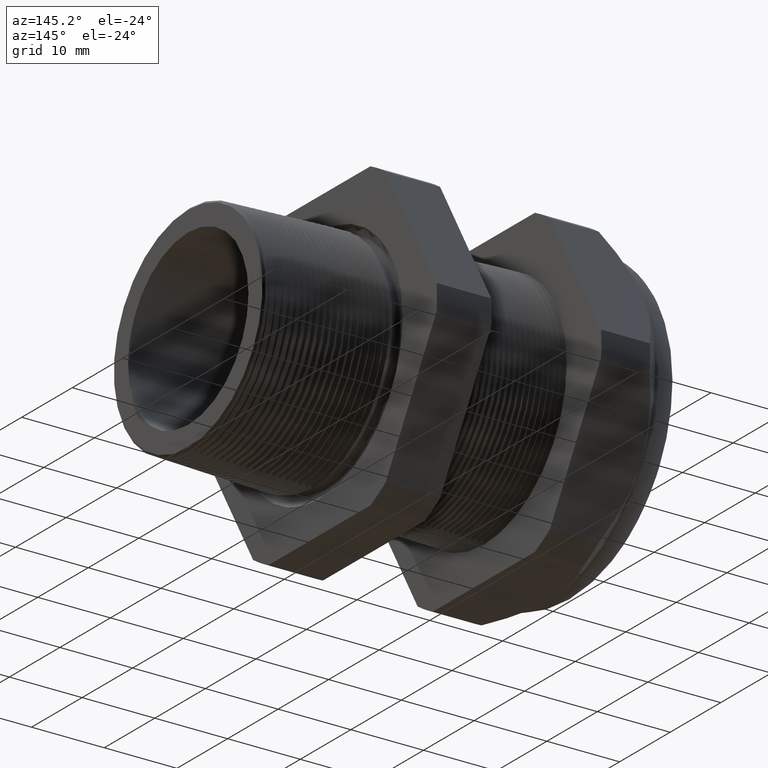
[diagram: clean part render]
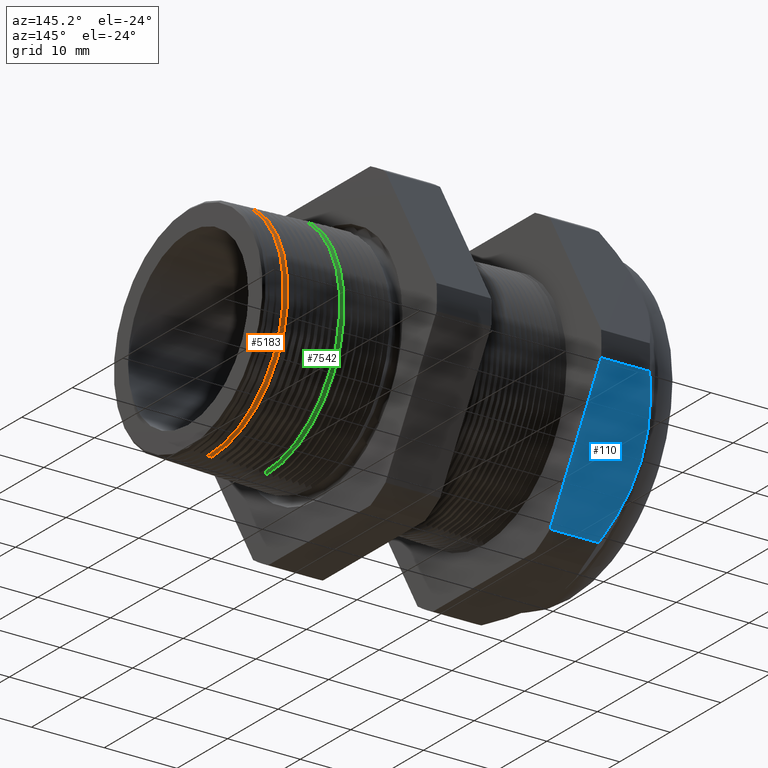
[diagram: same view with three faces highlighted in distinct colors, each labeled with its STEP entity id]
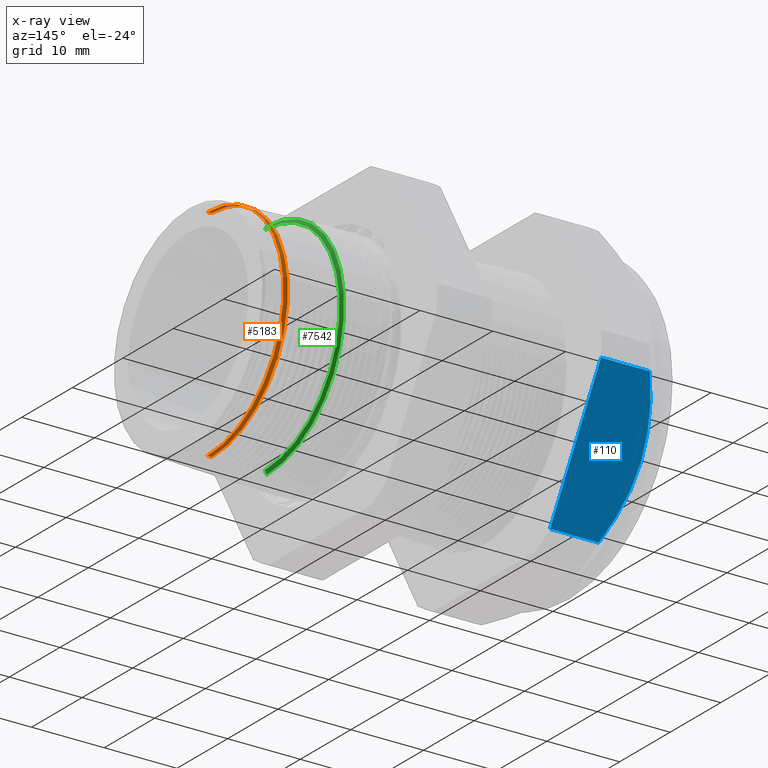
[diagram: x-ray of the same camera — body ghosted, the three highlighted faces saturated]
A machine part, auxiliary view with three faces highlighted in distinct colors.
The next image is the same camera in x-ray (body ghosted, the three faces saturated) — at least one of them is partly hidden behind the body in this view.
Their STEP definitions:

[orange] entity #5183 — the highlighted conical surface has half-angle 2 deg.
#1146 = VERTEX_POINT ( 'NONE', #4621 ) ;
#1149 = EDGE_CURVE ( 'NONE', #1152, #1146, #4618, .T. ) ;
#1152 = VERTEX_POINT ( 'NONE', #4607 ) ;
#1201 = VERTEX_POINT ( 'NONE', #4755 ) ;
#1207 = EDGE_CURVE ( 'NONE', #2676, #1201, #4745, .T. ) ;
#2676 = VERTEX_POINT ( 'NONE', #6583 ) ;
#4607 = CARTESIAN_POINT ( 'NONE',  ( 0.2726611505627704000, 0.0000000000000000000, 0.5935625407541995600 ) ) ;
#4610 = DIRECTION ( 'NONE',  ( 0.0000000000000000000, 0.0000000000000000000, -1.000000000000000000 ) ) ;
#4611 = DIRECTION ( 'NONE',  ( -1.000000000000000000, 0.0000000000000000000, 0.0000000000000000000 ) ) ;
#4612 = CARTESIAN_POINT ( 'NONE',  ( 0.2726611505627704000, 0.0000000000000000000, 0.0000000000000000000 ) ) ;
#4613 = AXIS2_PLACEMENT_3D ( 'NONE', #4612, #4611, #4610 ) ;
#4618 = CIRCLE ( 'NONE', #4613, 0.5935625407541994500 ) ;
#4621 = CARTESIAN_POINT ( 'NONE',  ( 0.2726611505627704000, 7.269044656284007000E-017, -0.5935625407541995600 ) ) ;
#4741 = DIRECTION ( 'NONE',  ( 0.0000000000000000000, 0.0000000000000000000, 1.000000000000000000 ) ) ;
#4742 = DIRECTION ( 'NONE',  ( 1.000000000000000000, 0.0000000000000000000, 0.0000000000000000000 ) ) ;
#4743 = CARTESIAN_POINT ( 'NONE',  ( 0.2962567958232278900, 0.0000000000000000000, 0.0000000000000000000 ) ) ;
#4744 = AXIS2_PLACEMENT_3D ( 'NONE', #4743, #4742, #4741 ) ;
#4745 = CIRCLE ( 'NONE', #4744, 0.5927385626650502100 ) ;
#4755 = CARTESIAN_POINT ( 'NONE',  ( 0.2962567958232278900, 0.0000000000000000000, 0.5927385626650502100 ) ) ;
#5095 = ORIENTED_EDGE ( 'NONE', *, *, #1207, .F. ) ;
#5160 = EDGE_LOOP ( 'NONE', ( #5095, #5851, #5952, #5741 ) ) ;
#5183 = ADVANCED_FACE ( 'NONE', ( #6756 ), #6754, .T. ) ;
#5584 = EDGE_CURVE ( 'NONE', #1201, #1152, #6783, .T. ) ;
#5733 = DIRECTION ( 'NONE',  ( -0.9993908270190959800, 4.273955692856251300E-018, -0.03489949670249369700 ) ) ;
#5741 = ORIENTED_EDGE ( 'NONE', *, *, #5584, .F. ) ;
#5798 = EDGE_CURVE ( 'NONE', #2676, #1146, #6812, .T. ) ;
#5851 = ORIENTED_EDGE ( 'NONE', *, *, #5798, .T. ) ;
#5952 = ORIENTED_EDGE ( 'NONE', *, *, #1149, .F. ) ;
#6583 = CARTESIAN_POINT ( 'NONE',  ( 0.2962567958232278900, 7.263999245636786600E-017, -0.5927385626650502100 ) ) ;
#6750 = DIRECTION ( 'NONE',  ( 0.0000000000000000000, 0.0000000000000000000, 1.000000000000000000 ) ) ;
#6751 = DIRECTION ( 'NONE',  ( -1.000000000000000000, 0.0000000000000000000, 0.0000000000000000000 ) ) ;
#6752 = CARTESIAN_POINT ( 'NONE',  ( 0.3999999999999999700, 0.0000000000000000000, 0.0000000000000000000 ) ) ;
#6753 = AXIS2_PLACEMENT_3D ( 'NONE', #6752, #6751, #6750 ) ;
#6754 = CONICAL_SURFACE ( 'NONE', #6753, 0.5891157701456586300, 0.03490658503987931200 ) ;
#6756 = FACE_OUTER_BOUND ( 'NONE', #5160, .T. ) ;
#6783 = LINE ( 'NONE', #6841, #6840 ) ;
#6810 = VECTOR ( 'NONE', #5733, 39.37007874015748100 ) ;
#6811 = CARTESIAN_POINT ( 'NONE',  ( 0.3999999999999999700, 7.214587422361086500E-017, -0.5891157701456586300 ) ) ;
#6812 = LINE ( 'NONE', #6811, #6810 ) ;
#6839 = DIRECTION ( 'NONE',  ( -0.9993908270190959800, 0.0000000000000000000, 0.03489949670249369700 ) ) ;
#6840 = VECTOR ( 'NONE', #6839, 39.37007874015748100 ) ;
#6841 = CARTESIAN_POINT ( 'NONE',  ( 0.3999999999999999700, 0.0000000000000000000, 0.5891157701456586300 ) ) ;

[blue] entity #110 — the highlighted planar face has unit normal (0, 0.866, -0.5).
#82 = VERTEX_POINT ( 'NONE', #2476 ) ;
#89 = ORIENTED_EDGE ( 'NONE', *, *, #90, .T. ) ;
#90 = EDGE_CURVE ( 'NONE', #639, #82, #2522, .T. ) ;
#97 = VERTEX_POINT ( 'NONE', #2503 ) ;
#98 = VERTEX_POINT ( 'NONE', #2502 ) ;
#99 = ORIENTED_EDGE ( 'NONE', *, *, #100, .T. ) ;
#100 = EDGE_CURVE ( 'NONE', #97, #639, #2563, .T. ) ;
#110 = ADVANCED_FACE ( 'NONE', ( #2541 ), #2536, .T. ) ;
#114 = EDGE_LOOP ( 'NONE', ( #118, #99, #89, #3848, #3799 ) ) ;
#115 = EDGE_CURVE ( 'NONE', #98, #97, #2591, .T. ) ;
#118 = ORIENTED_EDGE ( 'NONE', *, *, #115, .T. ) ;
#639 = VERTEX_POINT ( 'NONE', #3610 ) ;
#2476 = CARTESIAN_POINT ( 'NONE',  ( -1.463895669291338500, 0.9132000843845192700, -0.06829105636982699100 ) ) ;
#2502 = CARTESIAN_POINT ( 'NONE',  ( -1.200314960629921000, 0.5157418318598052700, -0.7567089436301730500 ) ) ;
#2503 = CARTESIAN_POINT ( 'NONE',  ( -1.463895669291338500, 0.5157418318598052700, -0.7567089436301730500 ) ) ;
#2514 = CARTESIAN_POINT ( 'NONE',  ( -1.463895669291338500, 0.9132000843845192700, -0.06829105636982699100 ) ) ;
#2515 = CARTESIAN_POINT ( 'NONE',  ( -1.491372398164721100, 0.8815466788935423200, -0.1231163629127792800 ) ) ;
#2516 = CARTESIAN_POINT ( 'NONE',  ( -1.514375627289488800, 0.8488306607340112600, -0.1797821685864328700 ) ) ;
#2517 = CARTESIAN_POINT ( 'NONE',  ( -1.545964438283853500, 0.7825559566388158300, -0.2945733233359043600 ) ) ;
#2518 = CARTESIAN_POINT ( 'NONE',  ( -1.554645669291337500, 0.7488564788623137700, -0.3529425310333440000 ) ) ;
#2519 = CARTESIAN_POINT ( 'NONE',  ( -1.554645669291338400, 0.7144709581221623300, -0.4125000000000000900 ) ) ;
#2522 = B_SPLINE_CURVE_WITH_KNOTS ( 'NONE', 3,
 ( #2519, #2518, #2517, #2516, #2515, #2514 ),
 .UNSPECIFIED., .F., .F.,
 ( 4, 2, 4 ),
 ( 0.01036164945538862000, 0.01553879763505031300, 0.02071594581471200600 ),
 .UNSPECIFIED. ) ;
#2531 = DIRECTION ( 'NONE',  ( 0.0000000000000000000, 0.4999999999999998300, 0.8660254037844386000 ) ) ;
#2532 = DIRECTION ( 'NONE',  ( 0.0000000000000000000, 0.8660254037844387100, -0.4999999999999998900 ) ) ;
#2533 = CARTESIAN_POINT ( 'NONE',  ( 0.4000000000000000800, 0.9132000843845193800, -0.06829105636982699100 ) ) ;
#2534 = AXIS2_PLACEMENT_3D ( 'NONE', #2533, #2532, #2531 ) ;
#2536 = PLANE ( 'NONE',  #2534 ) ;
#2541 = FACE_OUTER_BOUND ( 'NONE', #114, .T. ) ;
#2551 = CARTESIAN_POINT ( 'NONE',  ( -1.554645669291338400, 0.7144709581221623300, -0.4125000000000000900 ) ) ;
#2552 = CARTESIAN_POINT ( 'NONE',  ( -1.554645669291337500, 0.7058686793890307500, -0.4273995838266531600 ) ) ;
#2553 = CARTESIAN_POINT ( 'NONE',  ( -1.554101283086533500, 0.6971877207736745200, -0.4424354452068530200 ) ) ;
#2554 = CARTESIAN_POINT ( 'NONE',  ( -1.551939090580067600, 0.6799402181191404000, -0.4723089961081851600 ) ) ;
#2555 = CARTESIAN_POINT ( 'NONE',  ( -1.550328354707566400, 0.6713824640496752800, -0.4871314609551776800 ) ) ;
#2556 = CARTESIAN_POINT ( 'NONE',  ( -1.544003129424731600, 0.6458952435726337300, -0.5312766217651236900 ) ) ;
#2557 = CARTESIAN_POINT ( 'NONE',  ( -1.537795156961972800, 0.6291518768872986800, -0.5602769835538801100 ) ) ;
#2558 = CARTESIAN_POINT ( 'NONE',  ( -1.514021755025360700, 0.5795634430641820600, -0.6461666704032853500 ) ) ;
#2559 = CARTESIAN_POINT ( 'NONE',  ( -1.491338430126443600, 0.5473561059063416500, -0.7019514147371661600 ) ) ;
#2560 = CARTESIAN_POINT ( 'NONE',  ( -1.463895669291338500, 0.5157418318598052700, -0.7567089436301730500 ) ) ;
#2563 = B_SPLINE_CURVE_WITH_KNOTS ( 'NONE', 3,
 ( #2560, #2559, #2558, #2557, #2556, #2555, #2554, #2553, #2552, #2551 ),
 .UNSPECIFIED., .F., .F.,
 ( 4, 2, 2, 2, 4 ),
 ( 2.483247851922047800E-007, 0.005180948890086909000, 0.007771299172737768300, 0.009066474314063193600, 0.01036164945538862000 ),
 .UNSPECIFIED. ) ;
#2587 = DIRECTION ( 'NONE',  ( -1.000000000000000000, 0.0000000000000000000, 0.0000000000000000000 ) ) ;
#2588 = VECTOR ( 'NONE', #2587, 39.37007874015748100 ) ;
#2590 = CARTESIAN_POINT ( 'NONE',  ( 0.4000000000000000800, 0.5157418318598052700, -0.7567089436301730500 ) ) ;
#2591 = LINE ( 'NONE', #2590, #2588 ) ;
#3610 = CARTESIAN_POINT ( 'NONE',  ( -1.554645669291338400, 0.7144709581221623300, -0.4125000000000000900 ) ) ;
#3798 = VERTEX_POINT ( 'NONE', #6663 ) ;
#3799 = ORIENTED_EDGE ( 'NONE', *, *, #3807, .F. ) ;
#3807 = EDGE_CURVE ( 'NONE', #98, #3798, #6662, .T. ) ;
#3814 = EDGE_CURVE ( 'NONE', #3798, #82, #6658, .T. ) ;
#3848 = ORIENTED_EDGE ( 'NONE', *, *, #3814, .F. ) ;
#6655 = DIRECTION ( 'NONE',  ( -1.000000000000000000, 0.0000000000000000000, 0.0000000000000000000 ) ) ;
#6656 = VECTOR ( 'NONE', #6655, 39.37007874015748100 ) ;
#6657 = CARTESIAN_POINT ( 'NONE',  ( 0.4000000000000000800, 0.9132000843845193800, -0.06829105636982699100 ) ) ;
#6658 = LINE ( 'NONE', #6657, #6656 ) ;
#6659 = DIRECTION ( 'NONE',  ( 0.0000000000000000000, 0.4999999999999998300, 0.8660254037844386000 ) ) ;
#6660 = VECTOR ( 'NONE', #6659, 39.37007874015748900 ) ;
#6661 = CARTESIAN_POINT ( 'NONE',  ( -1.200314960629921000, 0.8757209581221622200, -0.1332068072795187200 ) ) ;
#6662 = LINE ( 'NONE', #6661, #6660 ) ;
#6663 = CARTESIAN_POINT ( 'NONE',  ( -1.200314960629921000, 0.9132000843845194900, -0.06829105636982699100 ) ) ;

[green] entity #7542 — the highlighted conical surface has half-angle 62 deg.
#6970 = CARTESIAN_POINT ( 'NONE',  ( -0.02470268431848102200, 7.398546837244376000E-017, -0.6039467146872676800 ) ) ;
#7003 = DIRECTION ( 'NONE',  ( 0.0000000000000000000, 0.0000000000000000000, -1.000000000000000000 ) ) ;
#7004 = DIRECTION ( 'NONE',  ( 1.000000000000000000, 0.0000000000000000000, 0.0000000000000000000 ) ) ;
#7005 = CARTESIAN_POINT ( 'NONE',  ( -0.01373702801092110300, 0.0000000000000000000, 0.0000000000000000000 ) ) ;
#7006 = AXIS2_PLACEMENT_3D ( 'NONE', #7005, #7004, #7003 ) ;
#7011 = CIRCLE ( 'NONE', #7006, 0.5833233146597484000 ) ;
#7014 = CARTESIAN_POINT ( 'NONE',  ( -0.02470268431848102200, 0.0000000000000000000, 0.6039467146872676800 ) ) ;
#7015 = DIRECTION ( 'NONE',  ( 0.0000000000000000000, 0.0000000000000000000, 1.000000000000000000 ) ) ;
#7016 = DIRECTION ( 'NONE',  ( -1.000000000000000000, 0.0000000000000000000, 0.0000000000000000000 ) ) ;
#7017 = CARTESIAN_POINT ( 'NONE',  ( -0.02999999999999995400, 0.0000000000000000000, 0.0000000000000000000 ) ) ;
#7018 = AXIS2_PLACEMENT_3D ( 'NONE', #7017, #7016, #7015 ) ;
#7019 = CONICAL_SURFACE ( 'NONE', #7018, 0.6139095164847941900, 1.082104136236473200 ) ;
#7020 = FACE_OUTER_BOUND ( 'NONE', #7547, .T. ) ;
#7051 = DIRECTION ( 'NONE',  ( 0.0000000000000000000, 0.0000000000000000000, 1.000000000000000000 ) ) ;
#7052 = DIRECTION ( 'NONE',  ( 1.000000000000000000, 0.0000000000000000000, 0.0000000000000000000 ) ) ;
#7053 = CARTESIAN_POINT ( 'NONE',  ( -0.02470268431848102200, 0.0000000000000000000, 0.0000000000000000000 ) ) ;
#7054 = AXIS2_PLACEMENT_3D ( 'NONE', #7053, #7052, #7051 ) ;
#7055 = CIRCLE ( 'NONE', #7054, 0.6039467146872676800 ) ;
#7093 = DIRECTION ( 'NONE',  ( -0.4694715627859006300, 0.0000000000000000000, 0.8829475928589217700 ) ) ;
#7094 = VECTOR ( 'NONE', #7093, 39.37007874015748900 ) ;
#7095 = CARTESIAN_POINT ( 'NONE',  ( -0.02999999999999995400, 0.0000000000000000000, 0.6139095164847941900 ) ) ;
#7096 = LINE ( 'NONE', #7095, #7094 ) ;
#7136 = CARTESIAN_POINT ( 'NONE',  ( -0.01373702801092110300, 7.269932205817036100E-017, -0.5833233146597484000 ) ) ;
#7321 = ORIENTED_EDGE ( 'NONE', *, *, #7743, .T. ) ;
#7348 = VERTEX_POINT ( 'NONE', #6970 ) ;
#7381 = DIRECTION ( 'NONE',  ( -0.4694715627859006300, 1.081298943409538900E-016, -0.8829475928589217700 ) ) ;
#7382 = VECTOR ( 'NONE', #7381, 39.37007874015748900 ) ;
#7383 = CARTESIAN_POINT ( 'NONE',  ( -0.02999999999999995400, 7.518223243292024900E-017, -0.6139095164847941900 ) ) ;
#7384 = LINE ( 'NONE', #7383, #7382 ) ;
#7395 = CARTESIAN_POINT ( 'NONE',  ( -0.01373702801092110300, 0.0000000000000000000, 0.5833233146597484000 ) ) ;
#7419 = ORIENTED_EDGE ( 'NONE', *, *, #7548, .F. ) ;
#7542 = ADVANCED_FACE ( 'NONE', ( #7020 ), #7019, .T. ) ;
#7545 = VERTEX_POINT ( 'NONE', #7014 ) ;
#7547 = EDGE_LOOP ( 'NONE', ( #7419, #7321, #7552, #7572 ) ) ;
#7548 = EDGE_CURVE ( 'NONE', #7609, #7736, #7011, .T. ) ;
#7552 = ORIENTED_EDGE ( 'NONE', *, *, #7556, .T. ) ;
#7556 = EDGE_CURVE ( 'NONE', #7348, #7545, #7055, .T. ) ;
#7565 = EDGE_CURVE ( 'NONE', #7736, #7545, #7096, .T. ) ;
#7572 = ORIENTED_EDGE ( 'NONE', *, *, #7565, .F. ) ;
#7609 = VERTEX_POINT ( 'NONE', #7136 ) ;
#7736 = VERTEX_POINT ( 'NONE', #7395 ) ;
#7743 = EDGE_CURVE ( 'NONE', #7609, #7348, #7384, .T. ) ;